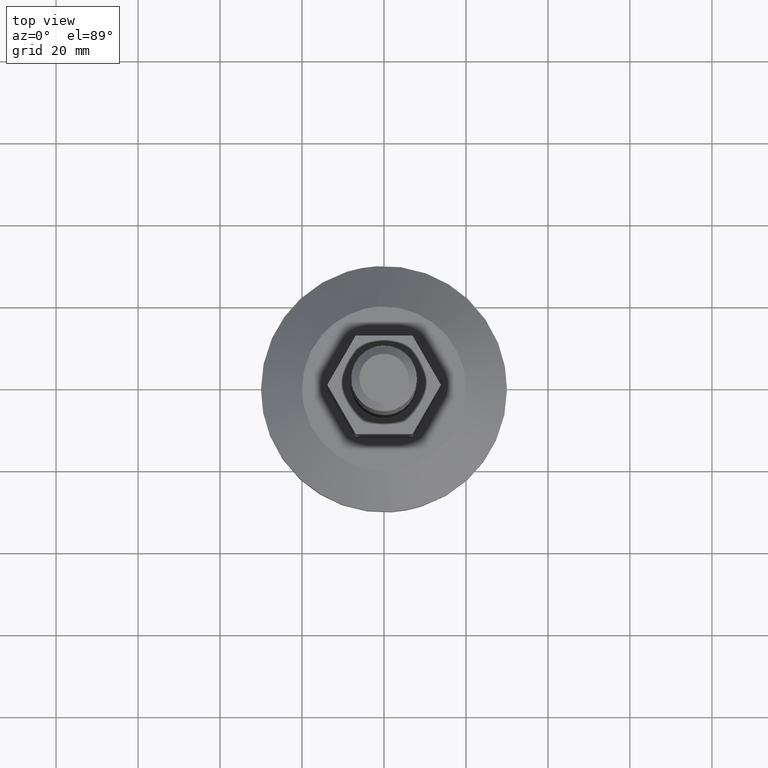
[diagram: clean part render]
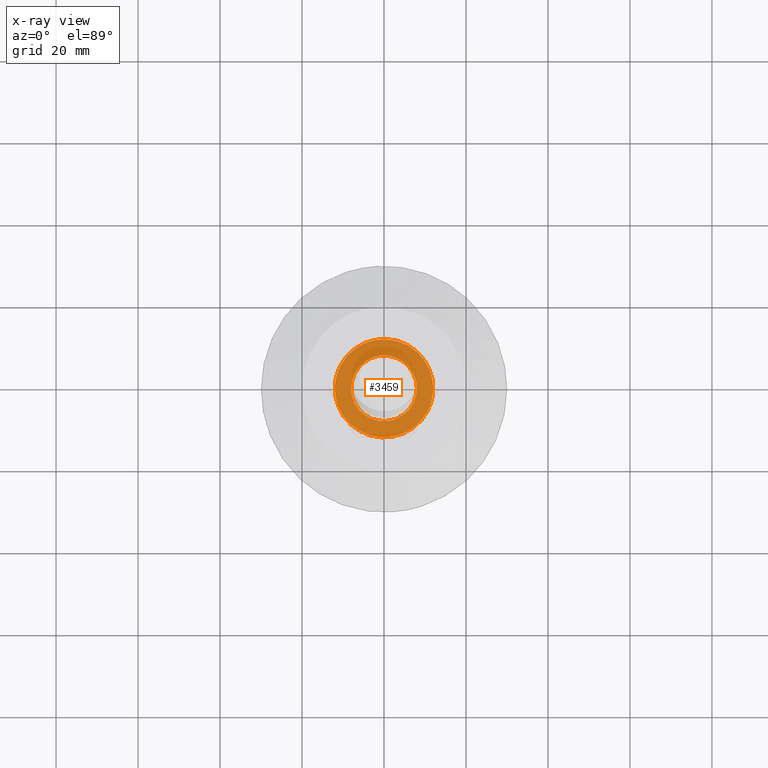
[diagram: x-ray — body ghosted, one internal face saturated and labeled with its STEP entity id]
A machine part, top view, then the same camera in x-ray: the body is ghosted and one INTERNAL B-rep face — a face not visible from any outside direction — is saturated and labeled: STEP entity #3459.
In plain terms, the highlighted face is a freeform B-spline surface patch.
Its self-contained STEP definition (entity closure, byte-faithful):
#3200=CARTESIAN_POINT('',(-11.993593654587141,0.0,17.0));
#3201=VERTEX_POINT('',#3200);
#3202=CARTESIAN_POINT('',(-10.636228768150300,5.542285299669217,17.000000000000110));
#3203=VERTEX_POINT('',#3202);
#3204=CARTESIAN_POINT('',(-11.993593654587141,0.0,17.0));
#3205=CARTESIAN_POINT('',(-11.993593654587142,2.937359231561432,17.000000000000007));
#3206=CARTESIAN_POINT('',(-10.636228768150129,5.542285299669127,17.000000000000004));
#3214=(BOUNDED_CURVE()B_SPLINE_CURVE(2,(#3204,#3205,#3206),.UNSPECIFIED.,.F.,.U.)B_SPLINE_CURVE_WITH_KNOTS((3,3),(0.500000000000000,0.578613981799993),.UNSPECIFIED.)CURVE()GEOMETRIC_REPRESENTATION_ITEM()RATIONAL_B_SPLINE_CURVE((1.0,0.907897991307432,0.873720027695666))REPRESENTATION_ITEM(''));
#3215=EDGE_CURVE('',#3201,#3203,#3214,.T.);
#3217=CARTESIAN_POINT('',(10.636228768150310,-5.542285299669219,17.000000000000110));
#3218=VERTEX_POINT('',#3217);
#3219=CARTESIAN_POINT('',(10.636228768150310,-5.542285299669219,17.000000000000110));
#3220=CARTESIAN_POINT('',(10.309807174386080,-6.168871834553007,17.000000000000121));
#3221=CARTESIAN_POINT('',(9.613128703477649,-7.258571806584544,17.000000000000089));
#3222=CARTESIAN_POINT('',(8.140713362521716,-8.904650925322157,17.000000000000028));
#3223=CARTESIAN_POINT('',(6.281251893699430,-10.329461874675550,17.000000000000028));
#3224=CARTESIAN_POINT('',(3.818743098431218,-11.475362188997760,17.000000000000021));
#3225=CARTESIAN_POINT('',(1.445468357717730,-11.986122822373000,16.999999999999989));
#3226=CARTESIAN_POINT('',(-1.097160230707532,-12.023023674928190,17.000000000000011));
#3227=CARTESIAN_POINT('',(-3.278480905631100,-11.619408739992849,17.0));
#3228=CARTESIAN_POINT('',(-5.213667345772816,-10.845013513948720,17.000000000000011));
#3229=CARTESIAN_POINT('',(-6.730671167460241,-9.974762394541109,17.0));
#3230=CARTESIAN_POINT('',(-8.145441945087338,-8.874062907144182,17.000000000000021));
#3231=CARTESIAN_POINT('',(-9.507704106788616,-7.407320312488394,16.999999999999979));
#3232=CARTESIAN_POINT('',(-10.509027393057821,-5.868688054453407,17.000000000000021));
#3233=CARTESIAN_POINT('',(-11.240074952904360,-4.280480363968530,16.999999999999989));
#3234=CARTESIAN_POINT('',(-11.821675382803370,-2.410348881974028,16.999999999999979));
#3235=CARTESIAN_POINT('',(-11.993759758520220,-0.914295812979952,17.000000000000082));
#3236=CARTESIAN_POINT('',(-11.993593654587141,0.0,17.0));
#3237=B_SPLINE_CURVE_WITH_KNOTS('',3,(#3219,#3220,#3221,#3222,#3223,#3224,#3225,#3226,#3227,#3228,#3229,#3230,#3231,#3232,#3233,#3234,#3235,#3236),.UNSPECIFIED.,.F.,.U.,(4,1,1,1,1,1,1,1,1,1,1,1,1,1,1,4),(0.000000267243099,2.119539708907013,3.865051832258491,6.608027345217959,9.101582461253273,11.969247450142070,13.839249535582210,16.706957355501071,18.577112838862810,20.073314596084451,21.943492872551030,23.938374179608012,26.057909295216369,27.429384381359920,29.174959774326670,31.917814500993160),.UNSPECIFIED.);
#3238=EDGE_CURVE('',#3218,#3201,#3237,.T.);
#3275=CARTESIAN_POINT('',(11.993593654587141,0.0,17.0));
#3276=VERTEX_POINT('',#3275);
#3277=CARTESIAN_POINT('',(-10.636228768150300,5.542285299669217,17.000000000000110));
#3278=CARTESIAN_POINT('',(-10.079808629642910,6.611482809296144,17.000000000000188));
#3279=CARTESIAN_POINT('',(-9.037439890720355,8.036170972636967,16.999999999999979));
#3280=CARTESIAN_POINT('',(-7.379559972631563,9.494083118561260,17.000000000000110));
#3281=CARTESIAN_POINT('',(-6.002169781674259,10.429691405876801,16.999999999999979));
#3282=CARTESIAN_POINT('',(-4.280105948076136,11.275063153187981,17.000000000000050));
#3283=CARTESIAN_POINT('',(-2.149525084625215,11.874835820212111,16.999999999999989));
#3284=CARTESIAN_POINT('',(-0.111112116843842,12.042418286673730,17.0));
#3285=CARTESIAN_POINT('',(1.799098212787531,11.901080913182509,16.999999999999989));
#3286=CARTESIAN_POINT('',(3.549375374832374,11.510836256252979,17.0));
#3287=CARTESIAN_POINT('',(5.213679098595113,10.845057533193531,17.0));
#3288=CARTESIAN_POINT('',(6.730667006978039,9.974754320866285,17.000000000000028));
#3289=CARTESIAN_POINT('',(8.178352281316371,8.848473036792143,16.999999999999901));
#3290=CARTESIAN_POINT('',(9.533561078135694,7.374004771533136,17.000000000000028));
#3291=CARTESIAN_POINT('',(10.752172300861419,5.480168229973035,17.0));
#3292=CARTESIAN_POINT('',(11.727861375574101,3.033691397418740,16.999999999999929));
#3293=CARTESIAN_POINT('',(11.993916385694320,1.080537855166836,17.000000000000231));
#3294=CARTESIAN_POINT('',(11.993593654587141,0.0,17.0));
#3295=B_SPLINE_CURVE_WITH_KNOTS('',3,(#3277,#3278,#3279,#3280,#3281,#3282,#3283,#3284,#3285,#3286,#3287,#3288,#3289,#3290,#3291,#3292,#3293,#3294),.UNSPECIFIED.,.F.,.U.,(4,1,1,1,1,1,1,1,1,1,1,1,1,1,1,4),(0.000000267237876,3.615691984350939,5.236539749478002,6.608027345215188,8.602872932183804,10.971834895811689,13.215889032728720,14.712012250108000,16.706957355500169,18.577112838862270,20.073314596084110,21.943492872550859,24.063064388017899,26.057909295216302,28.676240200097030,31.917814500993138),.UNSPECIFIED.);
#3296=EDGE_CURVE('',#3203,#3276,#3295,.T.);
#3304=CARTESIAN_POINT('',(11.993593654587141,0.0,17.0));
#3305=CARTESIAN_POINT('',(11.993593654587142,-2.937359231561432,17.000000000000007));
#3306=CARTESIAN_POINT('',(10.636228768150129,-5.542285299669127,17.000000000000004));
#3314=(BOUNDED_CURVE()B_SPLINE_CURVE(2,(#3304,#3305,#3306),.UNSPECIFIED.,.F.,.U.)B_SPLINE_CURVE_WITH_KNOTS((3,3),(0.0,0.078613981799993),.UNSPECIFIED.)CURVE()GEOMETRIC_REPRESENTATION_ITEM()RATIONAL_B_SPLINE_CURVE((1.0,0.907897991307432,0.873720027695666))REPRESENTATION_ITEM(''));
#3315=EDGE_CURVE('',#3276,#3218,#3314,.T.);
#3339=CARTESIAN_POINT('',(0.488376370147864,-7.985079118013667,17.000000000000139));
#3340=VERTEX_POINT('',#3339);
#3346=CARTESIAN_POINT('',(-8.0,0.0,17.0));
#3347=VERTEX_POINT('',#3346);
#3348=CARTESIAN_POINT('',(0.488376370147864,-7.985079118013667,17.000000000000135));
#3349=CARTESIAN_POINT('',(0.244416152970268,-7.999999999991299,16.999999999999996));
#3350=CARTESIAN_POINT('',(-5.238415E-013,-7.999999999991434,17.0));
#3351=CARTESIAN_POINT('',(-8.000000000000254,-7.999999999995848,17.000000000000004));
#3352=CARTESIAN_POINT('',(-8.0,0.0,17.0));
#3360=(BOUNDED_CURVE()B_SPLINE_CURVE(2,(#3348,#3349,#3350,#3351,#3352),.UNSPECIFIED.,.F.,.U.)B_SPLINE_CURVE_WITH_KNOTS((3,2,3),(0.239333218813332,0.250000000000000,0.500000000000000),.UNSPECIFIED.)CURVE()GEOMETRIC_REPRESENTATION_ITEM()RATIONAL_B_SPLINE_CURVE((0.976072591555091,0.987503088495432,1.0,0.707106781186548,1.0))REPRESENTATION_ITEM(''));
#3361=EDGE_CURVE('',#3340,#3347,#3360,.T.);
#3363=CARTESIAN_POINT('',(-0.488376370147863,7.985079118013667,17.000000000000139));
#3364=VERTEX_POINT('',#3363);
#3365=CARTESIAN_POINT('',(-8.0,0.0,17.0));
#3366=CARTESIAN_POINT('',(-7.999999999999730,7.525659746547362,17.000000000000007));
#3367=CARTESIAN_POINT('',(-0.488376442733946,7.985079113574330,17.000000000000004));
#3375=(BOUNDED_CURVE()B_SPLINE_CURVE(2,(#3365,#3366,#3367),.UNSPECIFIED.,.F.,.U.)B_SPLINE_CURVE_WITH_KNOTS((3,3),(0.500000000000000,0.739333218813332),.UNSPECIFIED.)CURVE()GEOMETRIC_REPRESENTATION_ITEM()RATIONAL_B_SPLINE_CURVE((1.0,0.719603692691116,0.976072591555091))REPRESENTATION_ITEM(''));
#3376=EDGE_CURVE('',#3347,#3364,#3375,.T.);
#3408=CARTESIAN_POINT('',(8.0,0.0,17.0));
#3409=VERTEX_POINT('',#3408);
#3410=CARTESIAN_POINT('',(-0.488376370147863,7.985079118013667,17.000000000000135));
#3411=CARTESIAN_POINT('',(-0.244416152970268,7.999999999991299,16.999999999999996));
#3412=CARTESIAN_POINT('',(5.238415E-013,7.999999999991434,17.0));
#3413=CARTESIAN_POINT('',(8.000000000000254,7.999999999995848,17.000000000000004));
#3414=CARTESIAN_POINT('',(8.0,0.0,17.0));
#3422=(BOUNDED_CURVE()B_SPLINE_CURVE(2,(#3410,#3411,#3412,#3413,#3414),.UNSPECIFIED.,.F.,.U.)B_SPLINE_CURVE_WITH_KNOTS((3,2,3),(0.739333218813332,0.750000000000000,1.0),.UNSPECIFIED.)CURVE()GEOMETRIC_REPRESENTATION_ITEM()RATIONAL_B_SPLINE_CURVE((0.976072591555091,0.987503088495432,1.0,0.707106781186548,1.0))REPRESENTATION_ITEM(''));
#3423=EDGE_CURVE('',#3364,#3409,#3422,.T.);
#3425=CARTESIAN_POINT('',(8.0,0.0,17.0));
#3426=CARTESIAN_POINT('',(7.999999999999730,-7.525659746547362,17.000000000000007));
#3427=CARTESIAN_POINT('',(0.488376442733946,-7.985079113574330,17.000000000000004));
#3435=(BOUNDED_CURVE()B_SPLINE_CURVE(2,(#3425,#3426,#3427),.UNSPECIFIED.,.F.,.U.)B_SPLINE_CURVE_WITH_KNOTS((3,3),(0.0,0.239333218813332),.UNSPECIFIED.)CURVE()GEOMETRIC_REPRESENTATION_ITEM()RATIONAL_B_SPLINE_CURVE((1.0,0.719603692691116,0.976072591555091))REPRESENTATION_ITEM(''));
#3436=EDGE_CURVE('',#3409,#3340,#3435,.T.);
#3442=CARTESIAN_POINT('',(-13.191753614188571,-13.187316291449280,17.0));
#3443=CARTESIAN_POINT('',(13.191754257575070,-13.187316291449280,17.0));
#3444=CARTESIAN_POINT('',(-13.191753614188571,13.187315862524940,17.0));
#3445=CARTESIAN_POINT('',(13.191754257575070,13.187315862524940,17.0));
#3446=B_SPLINE_SURFACE_WITH_KNOTS('',1,1,((#3442,#3444),(#3443,#3445)),.UNSPECIFIED.,.F.,.F.,.U.,(2,2),(2,2),(0.0,26.383507871763651),(0.0,26.374632153974218),.UNSPECIFIED.);
#3447=ORIENTED_EDGE('',*,*,#3315,.T.);
#3448=ORIENTED_EDGE('',*,*,#3238,.T.);
#3449=ORIENTED_EDGE('',*,*,#3215,.T.);
#3450=ORIENTED_EDGE('',*,*,#3296,.T.);
#3451=EDGE_LOOP('',(#3447,#3448,#3449,#3450));
#3452=FACE_OUTER_BOUND('',#3451,.T.);
#3453=ORIENTED_EDGE('',*,*,#3376,.F.);
#3454=ORIENTED_EDGE('',*,*,#3361,.F.);
#3455=ORIENTED_EDGE('',*,*,#3436,.F.);
#3456=ORIENTED_EDGE('',*,*,#3423,.F.);
#3457=EDGE_LOOP('',(#3453,#3454,#3455,#3456));
#3458=FACE_BOUND('',#3457,.T.);
#3459=ADVANCED_FACE('',(#3452,#3458),#3446,.F.);